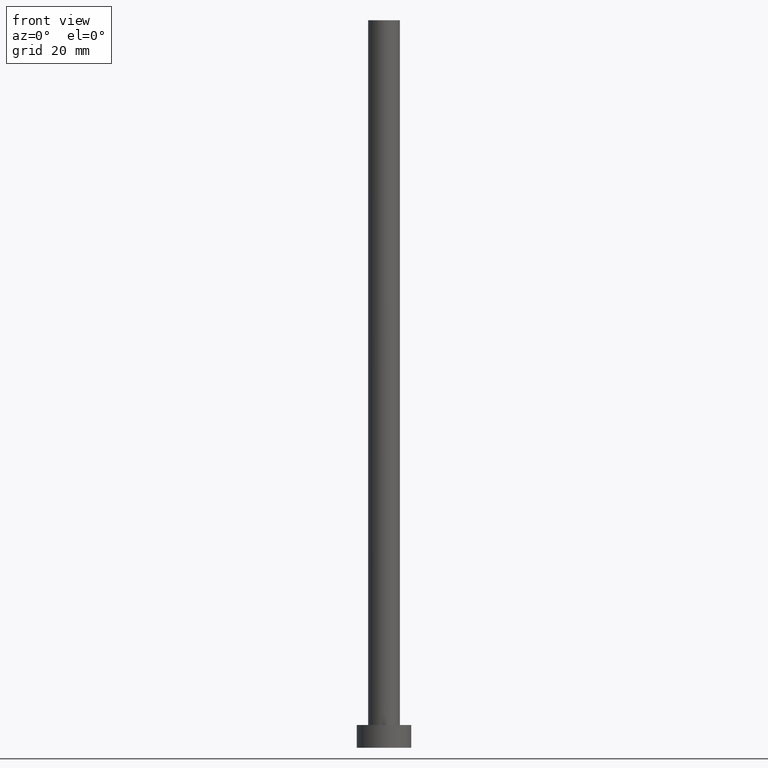
[diagram: clean part render]
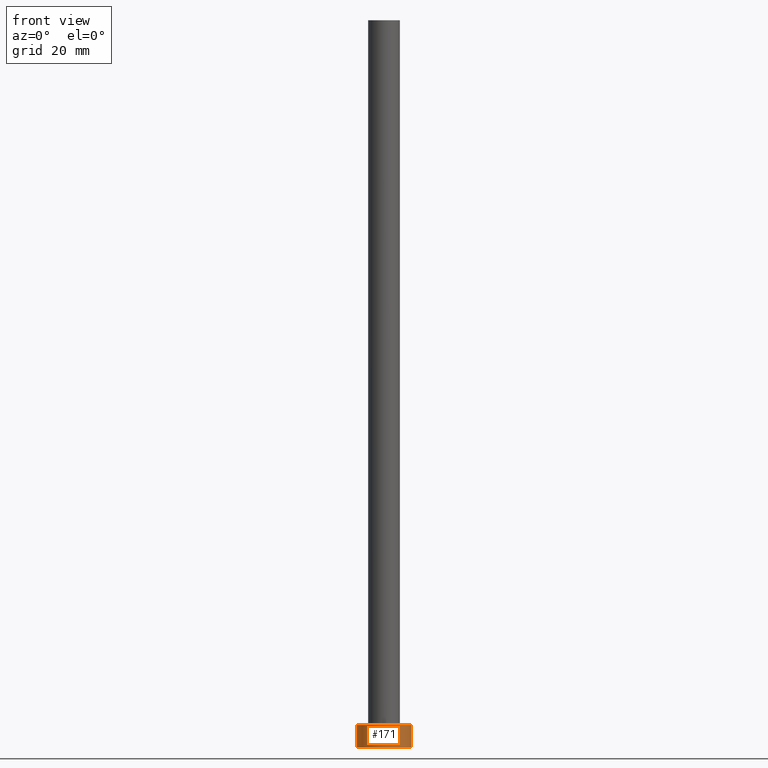
[diagram: same view with one face highlighted and labeled with its STEP entity id]
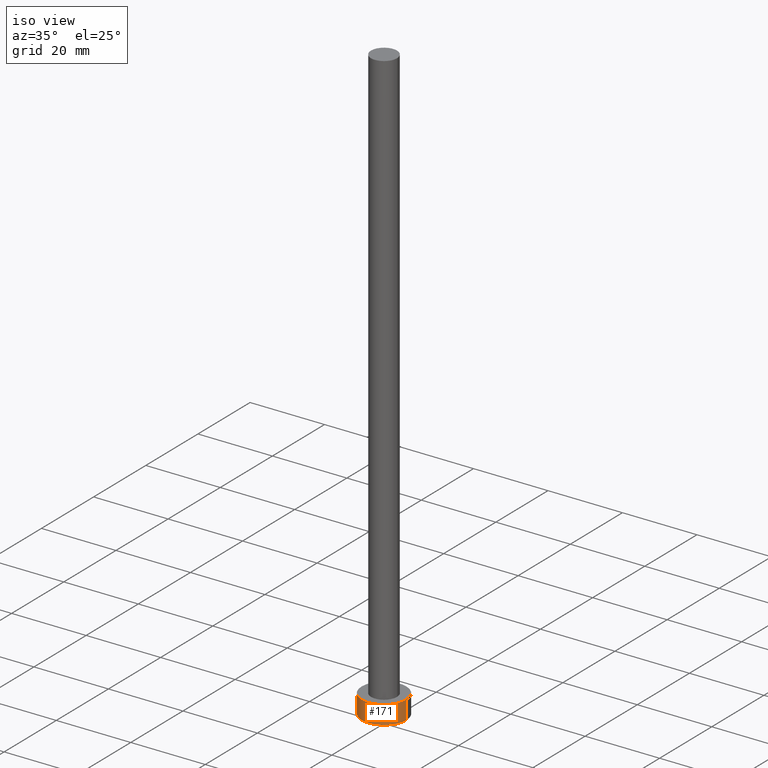
[diagram: same view with one face highlighted and labeled with its STEP entity id]
A machine part, front view. The second image highlights one B-rep face of the part: STEP entity #171.
A second angle (iso view) of the same face is appended — the face is thin or edge-on in the first view.
In plain terms, the highlighted cylindrical surface (edge-blend (fillet) strip) has radius 6 mm, axis along (-0, -0, -1).
Its self-contained STEP definition (entity closure, byte-faithful):
#13 = EDGE_LOOP ( 'NONE', ( #180, #241, #108, #157 ) ) ;
#15 = AXIS2_PLACEMENT_3D ( 'NONE', #57, #253, #195 ) ;
#17 = VECTOR ( 'NONE', #27, 1000.000000000000000 ) ;
#27 = DIRECTION ( 'NONE',  ( -0.000000000000000000, -0.000000000000000000, -1.000000000000000000 ) ) ;
#28 = CIRCLE ( 'NONE', #15, 6.000000000000000888 ) ;
#29 = CARTESIAN_POINT ( 'NONE',  ( 6.000000000000000888, 7.347880794884120722E-16, 5.000000000000000000 ) ) ;
#30 = CARTESIAN_POINT ( 'NONE',  ( 0.000000000000000000, 0.000000000000000000, 5.000000000000000000 ) ) ;
#40 = VECTOR ( 'NONE', #181, 1000.000000000000000 ) ;
#43 = DIRECTION ( 'NONE',  ( 1.000000000000000000, 0.000000000000000000, 0.000000000000000000 ) ) ;
#44 = EDGE_CURVE ( 'NONE', #199, #161, #251, .T. ) ;
#47 = LINE ( 'NONE', #65, #40 ) ;
#48 = DIRECTION ( 'NONE',  ( -1.000000000000000000, 0.000000000000000000, 0.000000000000000000 ) ) ;
#57 = CARTESIAN_POINT ( 'NONE',  ( 0.000000000000000000, 0.000000000000000000, 5.000000000000000000 ) ) ;
#62 = DIRECTION ( 'NONE',  ( 0.000000000000000000, 0.000000000000000000, 1.000000000000000000 ) ) ;
#65 = CARTESIAN_POINT ( 'NONE',  ( -6.000000000000000888, 0.000000000000000000, 5.000000000000000000 ) ) ;
#86 = CARTESIAN_POINT ( 'NONE',  ( 6.000000000000000888, 7.347880794884120722E-16, 0.000000000000000000 ) ) ;
#92 = EDGE_CURVE ( 'NONE', #185, #161, #130, .T. ) ;
#108 = ORIENTED_EDGE ( 'NONE', *, *, #151, .T. ) ;
#113 = CARTESIAN_POINT ( 'NONE',  ( -6.000000000000000888, 0.000000000000000000, 0.000000000000000000 ) ) ;
#121 = EDGE_CURVE ( 'NONE', #200, #199, #28, .T. ) ;
#128 = CYLINDRICAL_SURFACE ( 'NONE', #154, 6.000000000000000888 ) ;
#130 = CIRCLE ( 'NONE', #215, 6.000000000000000888 ) ;
#148 = CARTESIAN_POINT ( 'NONE',  ( 6.000000000000000888, 7.347880794884120722E-16, 5.000000000000000000 ) ) ;
#151 = EDGE_CURVE ( 'NONE', #200, #185, #47, .T. ) ;
#154 = AXIS2_PLACEMENT_3D ( 'NONE', #30, #203, #48 ) ;
#157 = ORIENTED_EDGE ( 'NONE', *, *, #92, .T. ) ;
#161 = VERTEX_POINT ( 'NONE', #86 ) ;
#171 = ADVANCED_FACE ( 'NONE', ( #187 ), #128, .T. ) ;
#180 = ORIENTED_EDGE ( 'NONE', *, *, #44, .F. ) ;
#181 = DIRECTION ( 'NONE',  ( -0.000000000000000000, -0.000000000000000000, -1.000000000000000000 ) ) ;
#185 = VERTEX_POINT ( 'NONE', #113 ) ;
#187 = FACE_OUTER_BOUND ( 'NONE', #13, .T. ) ;
#195 = DIRECTION ( 'NONE',  ( 1.000000000000000000, 0.000000000000000000, 0.000000000000000000 ) ) ;
#199 = VERTEX_POINT ( 'NONE', #29 ) ;
#200 = VERTEX_POINT ( 'NONE', #227 ) ;
#203 = DIRECTION ( 'NONE',  ( -0.000000000000000000, -0.000000000000000000, -1.000000000000000000 ) ) ;
#215 = AXIS2_PLACEMENT_3D ( 'NONE', #240, #62, #43 ) ;
#227 = CARTESIAN_POINT ( 'NONE',  ( -6.000000000000000888, 0.000000000000000000, 5.000000000000000000 ) ) ;
#240 = CARTESIAN_POINT ( 'NONE',  ( 0.000000000000000000, 0.000000000000000000, 0.000000000000000000 ) ) ;
#241 = ORIENTED_EDGE ( 'NONE', *, *, #121, .F. ) ;
#251 = LINE ( 'NONE', #148, #17 ) ;
#253 = DIRECTION ( 'NONE',  ( 0.000000000000000000, 0.000000000000000000, 1.000000000000000000 ) ) ;